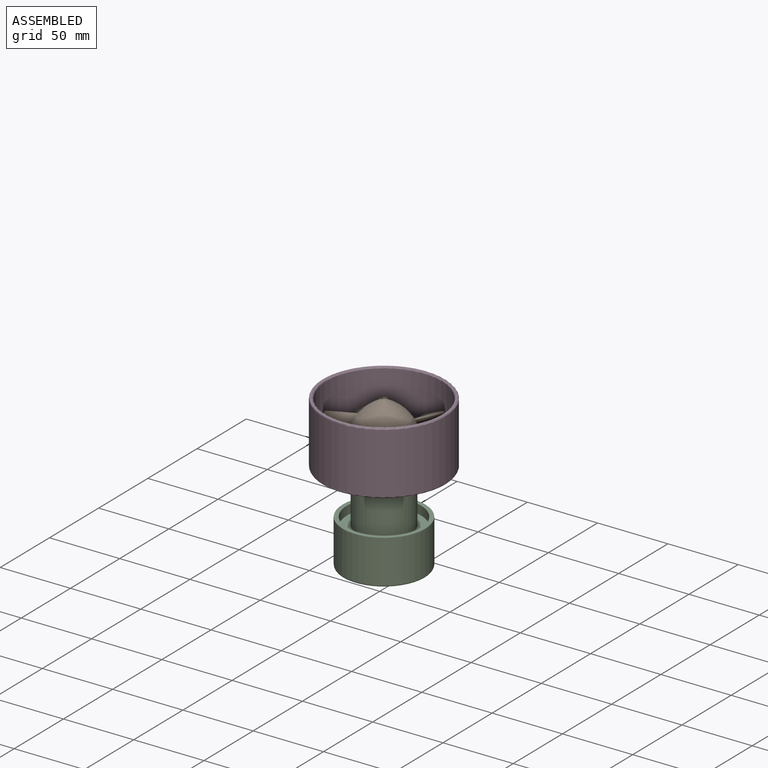
[diagram: assembled view]
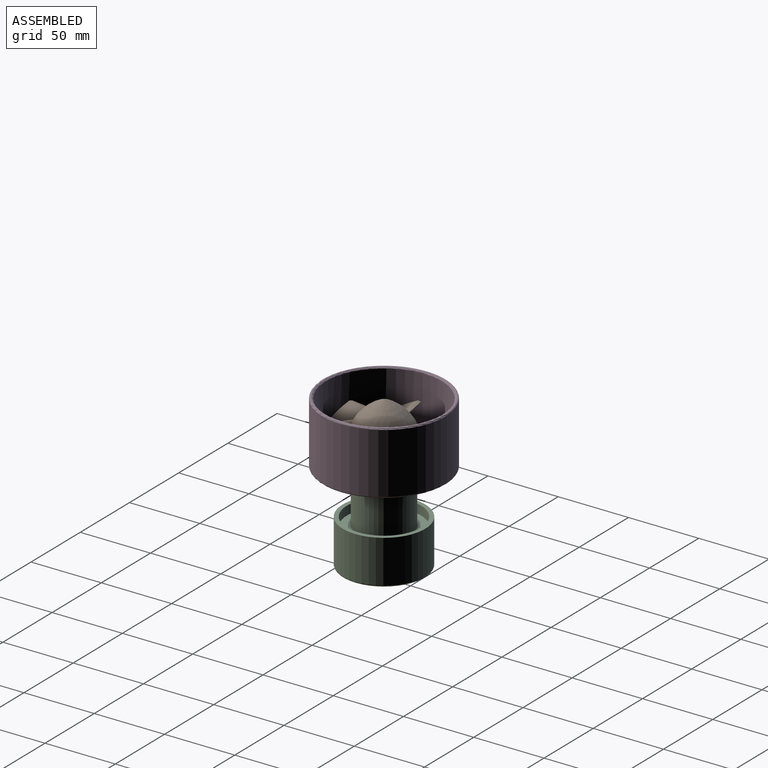
[diagram: assembled view, second angle]
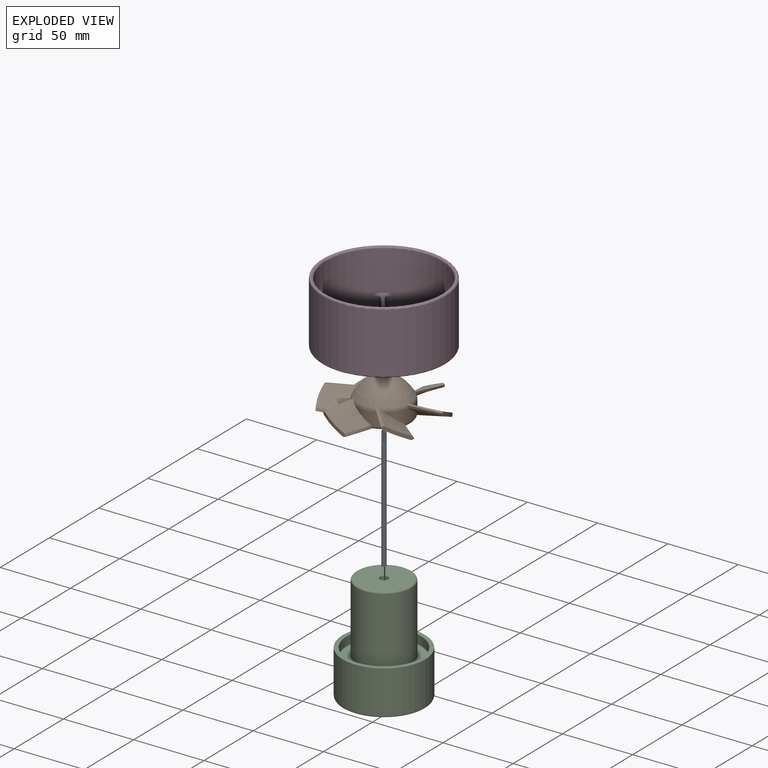
[diagram: exploded view]
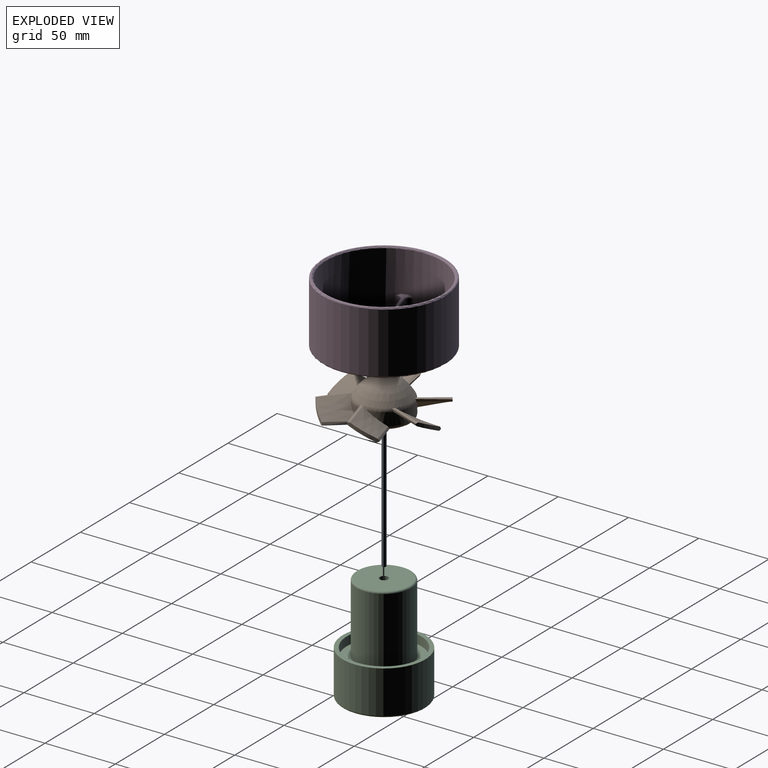
[diagram: exploded view, second angle]
ASSEMBLY  parts=4 mates=3
PART A: 6 faces, bbox 3x3x88.9 mm
  f0: plane 10.41x2.58mm, normal (0,1,0), area 24.5mm2, adj f1,f2,f4,f5
  f1: cylinder r=1.52mm len=86.36mm, axis (0,0,-1), area 802.7mm2, adj f0,f3,f4,f5
  f2: plane 1.69x1.66mm, normal (0,0,1), area 2.2mm2, adj f0,f5
  f3: plane 3.05x3.05mm, normal (0,0,-1), area 7.3mm2, adj f1
  f4: plane 2.58x0.71mm, normal (0,0,1), area 1.3mm2, adj f0,f1
  f5: cone r=0.84mm half-angle=15deg, axis (0,0,-1), area 14.6mm2, adj f0,f1,f2
PART B: 60 faces, bbox 79.4x80x29.2 mm
  f0: plane 23.32x3.22mm, normal (0,-1,0), area 71.3mm2, adj f1,f2,f47
  f1: cylinder r=1.78mm len=19.69mm, axis (0,0,-1), area 141mm2, adj f0,f2,f47
  f2: plane 33.78x33.78mm, normal (0,0,-1), area 888.7mm2, adj f0,f1,f12
  f3: cylinder r=19.43mm len=25.97mm, axis (0,0,-1), area 141.3mm2, adj f12,f17,f25,f52
  f4: cylinder r=19.43mm len=22.62mm, axis (0,0,-1), area 141.3mm2, adj f12,f23,f31,f51
  f5: cylinder r=19.43mm len=22.37mm, axis (0,0,-1), area 141.3mm2, adj f12,f29,f37,f50
  f6: cylinder r=19.43mm len=25.97mm, axis (0,0,-1), area 141.3mm2, adj f12,f35,f43,f49
  f7: cylinder r=19.43mm len=22.62mm, axis (0,0,-1), area 141.3mm2, adj f12,f13,f41,f48
  f8: bspline ~29.84x4.51mm, area 42.8mm2, adj f10,f13,f46,f48,f59
  f9: bspline ~29.84x17.7mm, area 394.6mm2, adj f10,f11,f12,f15,f46,f53,f59
  f10: bspline ~29.84x3.52mm, area 42.9mm2, adj f8,f9,f46,f59
  f11: cylinder r=19.43mm len=22.37mm, axis (0,0,-1), area 141.3mm2, adj f9,f12,f19,f53
  f12: torus R=16.89mm, axis (0,0,1), area 417.8mm2, adj f2,f3,f4,f5,f6,f7,f9,f11
  f13: bspline ~29.84x17.27mm, area 395mm2, adj f7,f8,f12,f14,f48,f59
  f14: bspline ~29.84x3.52mm, area 44mm2, adj f12,f13,f15,f59
  f15: bspline ~29.84x4.22mm, area 42.8mm2, adj f9,f12,f14,f59
  f16: bspline ~25.51x16.67mm, area 42.8mm2, adj f18,f19,f46,f53,f58
  f17: bspline ~33.85x29.33mm, area 394.6mm2, adj f3,f12,f18,f21,f46,f52,f58
  f18: bspline ~26.02x17.97mm, area 42.9mm2, adj f16,f17,f46,f58
  f19: bspline ~33.95x28.47mm, area 395mm2, adj f11,f12,f16,f20,f53,f58
  f20: bspline ~27.6x15.23mm, area 44mm2, adj f12,f19,f21,f58
  f21: bspline ~26.79x14.3mm, area 42.8mm2, adj f12,f17,f20,f58
  f22: bspline ~26.85x14.35mm, area 42.8mm2, adj f24,f25,f46,f52,f57
  f23: bspline ~34.16x28.79mm, area 394.6mm2, adj f4,f12,f24,f27,f46,f51,f57
  f24: bspline ~27.6x15.23mm, area 42.9mm2, adj f22,f23,f46,f57
  f25: bspline ~33.67x28.96mm, area 395mm2, adj f3,f12,f22,f26,f52,f57
  f26: bspline ~26.02x17.97mm, area 44mm2, adj f12,f25,f27,f57
  f27: bspline ~25.49x16.56mm, area 42.8mm2, adj f12,f23,f26,f57
  f28: bspline ~29.84x4.51mm, area 42.8mm2, adj f30,f31,f46,f51,f56
  f29: bspline ~29.84x17.7mm, area 394.6mm2, adj f5,f12,f30,f33,f46,f50,f56
  f30: bspline ~29.84x3.52mm, area 42.9mm2, adj f28,f29,f46,f56
  f31: bspline ~29.84x17.27mm, area 395mm2, adj f4,f12,f28,f32,f51,f56
  f32: bspline ~29.84x3.52mm, area 44mm2, adj f12,f31,f33,f56
  f33: bspline ~29.84x4.22mm, area 42.8mm2, adj f12,f29,f32,f56
  f34: bspline ~25.51x16.67mm, area 42.8mm2, adj f36,f37,f46,f50,f55
  f35: bspline ~33.85x29.33mm, area 394.6mm2, adj f6,f12,f36,f39,f46,f49,f55
  f36: bspline ~26.02x17.97mm, area 42.9mm2, adj f34,f35,f46,f55
  f37: bspline ~33.95x28.47mm, area 395mm2, adj f5,f12,f34,f38,f50,f55
  f38: bspline ~27.6x15.23mm, area 44mm2, adj f12,f37,f39,f55
  f39: bspline ~26.79x14.3mm, area 42.8mm2, adj f12,f35,f38,f55
  f40: bspline ~26.85x14.35mm, area 42.8mm2, adj f42,f43,f46,f49,f54
  f41: bspline ~34.16x28.79mm, area 394.6mm2, adj f7,f12,f42,f45,f46,f48,f54
  f42: bspline ~27.6x15.23mm, area 42.9mm2, adj f40,f41,f46,f54
  f43: bspline ~33.67x28.96mm, area 395mm2, adj f6,f12,f40,f44,f49,f54
  f44: bspline ~26.02x17.97mm, area 44mm2, adj f12,f43,f45,f54
  f45: bspline ~25.49x16.56mm, area 42.8mm2, adj f12,f41,f44,f54
  f46: revolved ~37.81x37.81mm, area 1601.6mm2, adj f8,f9,f10,f16,f17,f18,f22,f23
  f47: revolved ~5.08x3.56mm, area 26.6mm2, adj f0,f1
  f48: torus R=14.35mm, axis (0,0,-1), area 45.1mm2, adj f7,f8,f13,f41,f46
  f49: torus R=14.35mm, axis (0,0,-1), area 45.1mm2, adj f6,f35,f40,f43,f46
  f50: torus R=14.35mm, axis (0,0,-1), area 45.1mm2, adj f5,f29,f34,f37,f46
  f51: torus R=14.35mm, axis (0,0,-1), area 45.1mm2, adj f4,f23,f28,f31,f46
  f52: torus R=14.35mm, axis (0,0,-1), area 45.1mm2, adj f3,f17,f22,f25,f46
  f53: torus R=14.35mm, axis (0,0,-1), area 45.1mm2, adj f9,f11,f16,f19,f46
  f54: cylinder r=40mm len=17.22mm, axis (0,0,-1), area 52.3mm2, adj f40,f41,f42,f43,f44,f45
  f55: cylinder r=40mm len=17.22mm, axis (0,0,-1), area 52.3mm2, adj f34,f35,f36,f37,f38,f39
  f56: cylinder r=40mm len=19.88mm, axis (0,0,-1), area 52.3mm2, adj f28,f29,f30,f31,f32,f33
  f57: cylinder r=40mm len=17.22mm, axis (0,0,-1), area 52.3mm2, adj f22,f23,f24,f25,f26,f27
  f58: cylinder r=40mm len=17.22mm, axis (0,0,-1), area 52.3mm2, adj f16,f17,f18,f19,f20,f21
  f59: cylinder r=40mm len=19.88mm, axis (0,0,-1), area 52.3mm2, adj f8,f9,f10,f13,f14,f15
PART C: 11 faces, bbox 63.5x63.5x76.2 mm
  f0: cylinder r=29.34mm len=58.67mm, axis (0,0,-1), area 5618.4mm2, adj f7,f9
  f1: plane 52.83x52.83mm, normal (0,0,1), area 845.9mm2, adj f6,f10
  f2: plane 56.13x56.13mm, normal (0,0,-1), area 2446.8mm2, adj f3,f9
  f3: cylinder r=2.98mm len=76.2mm, axis (0,0,-1), area 1428.9mm2, adj f2,f5
  f4: cylinder r=19.43mm len=48.26mm, axis (0,0,-1), area 5892mm2, adj f8,f10
  f5: plane 36.32x36.32mm, normal (0,0,1), area 1008.2mm2, adj f3,f8
  f6: cylinder r=26.42mm len=52.83mm, axis (0,0,-1), area 1054mm2, adj f1,f7
  f7: plane 58.67x58.67mm, normal (0,0,1), area 511.6mm2, adj f0,f6
  f8: torus R=18.16mm, axis (0,0,1), area 237.8mm2, adj f4,f5
  f9: torus R=28.07mm, axis (0,0,1), area 361.9mm2, adj f0,f2
  f10: torus R=20.7mm, axis (0,0,1), area 249.3mm2, adj f1,f4
PART D: 168 faces, bbox 115.5x109.8x58 mm
  f0: cone r=41.23mm half-angle=62.7deg, axis (0,0,1), area 25.5mm2, adj f112,f133,f134,f143,f144,f157,f158,f160
  f1: cone r=41.23mm half-angle=62.7deg, axis (0,0,1), area 25.5mm2, adj f125,f126,f136,f145,f146,f159,f160,f162
  f2: cone r=41.23mm half-angle=62.7deg, axis (0,0,1), area 25.5mm2, adj f103,f127,f128,f137,f138,f148,f149,f160
  f3: cone r=41.23mm half-angle=62.7deg, axis (0,0,1), area 25.5mm2, adj f106,f129,f130,f139,f140,f151,f152,f160
  f4: plane 20.56x9.29mm, normal (0.81,-0.59,0), area 202.1mm2, adj f45,f46,f95,f159
  f5: plane 20.56x9.29mm, normal (-0.81,0.59,0), area 202.1mm2, adj f43,f44,f83,f136
  f6: plane 43.3x43.3mm, normal (0,0,-1), area 161.4mm2, adj f160,f163
  f7: plane 20.56x9.29mm, normal (0.81,0.59,0), area 202.1mm2, adj f39,f40,f75,f137
  f8: plane 20.56x9.29mm, normal (-0.81,-0.59,0), area 202.1mm2, adj f41,f42,f63,f138
  f9: plane 20.56x10.92mm, normal (-0.31,0.95,0), area 202.1mm2, adj f37,f38,f55,f139
  f10: plane 20.56x10.92mm, normal (0.31,-0.95,0), area 202.1mm2, adj f35,f36,f50,f140
  f11: plane 20.56x11.48mm, normal (-1,0,0), area 202.1mm2, adj f31,f34,f58,f141
  f12: plane 20.56x11.48mm, normal (1,0,0), area 202.1mm2, adj f32,f33,f70,f142
  f13: plane 20.56x10.92mm, normal (-0.31,-0.95,0), area 202.1mm2, adj f29,f30,f78,f143
  f14: plane 20.56x10.92mm, normal (0.31,0.95,0), area 202.1mm2, adj f27,f28,f90,f144
  f15: cylinder r=21.93mm len=22.87mm, axis (0,0,-1), area 425.8mm2, adj f39,f43,f79,f147
  f16: cylinder r=21.93mm len=22.87mm, axis (0,0,-1), area 425.8mm2, adj f38,f42,f59,f150
  f17: cylinder r=21.93mm len=22.87mm, axis (0,0,-1), area 425.8mm2, adj f31,f35,f54,f153
  f18: cylinder r=21.93mm len=22.87mm, axis (0,0,-1), area 425.8mm2, adj f30,f32,f74,f156
  f19: cylinder r=21.93mm len=22.87mm, axis (0,0,-1), area 425.8mm2, adj f27,f46,f94,f161
  f20: cylinder r=41.25mm len=82.5mm, axis (0,0,-1), area 10341.6mm2, adj f28,f29,f33,f34,f36,f37,f40,f41
  f21: cylinder r=43.75mm len=87.5mm, axis (0,0,-1), area 11820.2mm2, adj f165,f167
  f22: plane 85.5x85.5mm, normal (0,0,1), area 133.5mm2, adj f166,f167
  f23: plane 85.5x85.5mm, normal (0,0,-1), area 164.5mm2, adj f97,f98,f99,f100,f101,f102,f103,f104
  f24: plane 77.45x73.69mm, normal (0,0,1), area 164.9mm2, adj f48,f49,f50,f52,f53,f54,f55,f56
  f25: cylinder r=19.43mm len=38.86mm, axis (0,0,-1), area 2747mm2, adj f163,f164
  f26: cone r=41.23mm half-angle=62.7deg, axis (0,0,1), area 25.5mm2, adj f109,f131,f132,f141,f142,f154,f155,f160
  f27: cylinder r=4mm len=22.87mm, axis (0,0,-1), area 118.8mm2, adj f14,f19,f92,f158
  f28: cylinder r=4mm len=14.63mm, axis (0,0,-1), area 89.6mm2, adj f14,f20,f88,f113,f123,f134
  f29: cylinder r=4mm len=14.63mm, axis (0,0,-1), area 89.6mm2, adj f13,f20,f80,f111,f122,f133
  f30: cylinder r=4mm len=22.87mm, axis (0,0,-1), area 118.8mm2, adj f13,f18,f76,f157
  f31: cylinder r=4mm len=22.87mm, axis (0,0,-1), area 118.8mm2, adj f11,f17,f56,f154
  f32: cylinder r=4mm len=22.87mm, axis (0,0,-1), area 118.8mm2, adj f12,f18,f72,f155
  f33: cylinder r=4mm len=14.63mm, axis (0,0,-1), area 89.6mm2, adj f12,f20,f68,f110,f121,f132
  f34: cylinder r=4mm len=14.63mm, axis (0,0,-1), area 89.6mm2, adj f11,f20,f60,f108,f120,f131
  f35: cylinder r=4mm len=22.87mm, axis (0,0,-1), area 118.8mm2, adj f10,f17,f52,f152
  f36: cylinder r=4mm len=14.63mm, axis (0,0,-1), area 89.6mm2, adj f10,f20,f48,f107,f119,f130
  f37: cylinder r=4mm len=14.63mm, axis (0,0,-1), area 89.6mm2, adj f9,f20,f53,f105,f118,f129
  f38: cylinder r=4mm len=22.87mm, axis (0,0,-1), area 118.8mm2, adj f9,f16,f57,f151
  f39: cylinder r=4mm len=22.87mm, axis (0,0,-1), area 118.8mm2, adj f7,f15,f77,f148
  f40: cylinder r=4mm len=14.63mm, axis (0,0,-1), area 89.6mm2, adj f7,f20,f73,f102,f116,f127
  f41: cylinder r=4mm len=14.63mm, axis (0,0,-1), area 89.6mm2, adj f8,f20,f65,f104,f117,f128
  f42: cylinder r=4mm len=22.87mm, axis (0,0,-1), area 118.8mm2, adj f8,f16,f61,f149
  f43: cylinder r=4mm len=22.87mm, axis (0,0,-1), area 118.8mm2, adj f5,f15,f81,f146
  f44: cylinder r=4mm len=14.63mm, axis (0,0,-1), area 89.6mm2, adj f5,f20,f85,f101,f115,f126
  f45: cylinder r=4mm len=14.63mm, axis (0,0,-1), area 89.6mm2, adj f4,f20,f93,f124,f135,f145
  f46: cylinder r=4mm len=22.87mm, axis (0,0,-1), area 118.8mm2, adj f4,f19,f96,f162
  f47: bspline ~4.75x2mm, area 2.4mm2, adj f20,f48,f49
  f48: torus R=5mm, axis (0,0,1), area 8.2mm2, adj f24,f36,f47,f50
  f49: torus R=40.25mm, axis (0,0,1), area 4.9mm2, adj f20,f24,f47,f51
  f50: cylinder r=1mm len=11.23mm, axis (-0.95,-0.31,0), area 18mm2, adj f10,f24,f48,f52
  f51: bspline ~4.82x2.19mm, area 2.3mm2, adj f20,f49,f53
  f52: torus R=5mm, axis (0,0,1), area 9.4mm2, adj f24,f35,f50,f54
  f53: torus R=5mm, axis (0,0,1), area 8.2mm2, adj f24,f37,f51,f55
  f54: torus R=20.93mm, axis (0,0,1), area 28.8mm2, adj f17,f24,f52,f56
  f55: cylinder r=1mm len=11.23mm, axis (0.95,0.31,0), area 18mm2, adj f9,f24,f53,f57
  f56: torus R=5mm, axis (0,0,1), area 9.4mm2, adj f24,f31,f54,f58
  f57: torus R=5mm, axis (0,0,1), area 9.4mm2, adj f24,f38,f55,f59
  f58: cylinder r=1mm len=11.48mm, axis (0,1,0), area 18mm2, adj f11,f24,f56,f60
  f59: torus R=20.93mm, axis (0,0,1), area 28.8mm2, adj f16,f24,f57,f61
  f60: torus R=5mm, axis (0,0,1), area 8.2mm2, adj f24,f34,f58,f62
  f61: torus R=5mm, axis (0,0,1), area 9.4mm2, adj f24,f42,f59,f63
  f62: bspline ~4.93x2mm, area 2.4mm2, adj f20,f60,f64
  f63: cylinder r=1mm len=9.88mm, axis (-0.59,0.81,0), area 18mm2, adj f8,f24,f61,f65
  f64: torus R=40.25mm, axis (0,0,1), area 4.9mm2, adj f20,f24,f62,f66
  f65: torus R=5mm, axis (0,0,1), area 8.2mm2, adj f24,f41,f63,f67
  f66: bspline ~4.93x2mm, area 2.4mm2, adj f20,f64,f68
  f67: bspline ~4.29x3.23mm, area 2.4mm2, adj f20,f65,f69
  f68: torus R=5mm, axis (0,0,1), area 8.2mm2, adj f24,f33,f66,f70
  f69: torus R=40.25mm, axis (0,0,1), area 4.9mm2, adj f20,f24,f67,f71
  f70: cylinder r=1mm len=11.48mm, axis (0,-1,0), area 18mm2, adj f12,f24,f68,f72
  f71: bspline ~4.23x3.4mm, area 2.3mm2, adj f20,f69,f73
  f72: torus R=5mm, axis (0,0,1), area 9.4mm2, adj f24,f32,f70,f74
  f73: torus R=5mm, axis (0,0,1), area 8.2mm2, adj f24,f40,f71,f75
  f74: torus R=20.93mm, axis (0,0,1), area 28.8mm2, adj f18,f24,f72,f76
  f75: cylinder r=1mm len=9.88mm, axis (0.59,-0.81,0), area 18mm2, adj f7,f24,f73,f77
  f76: torus R=5mm, axis (0,0,1), area 9.4mm2, adj f24,f30,f74,f78
  f77: torus R=5mm, axis (0,0,1), area 9.4mm2, adj f24,f39,f75,f79
  f78: cylinder r=1mm len=11.23mm, axis (-0.95,0.31,0), area 18mm2, adj f13,f24,f76,f80
  f79: torus R=20.93mm, axis (0,0,1), area 28.8mm2, adj f15,f24,f77,f81
  f80: torus R=5mm, axis (0,0,1), area 8.2mm2, adj f24,f29,f78,f82
  f81: torus R=5mm, axis (0,0,1), area 9.4mm2, adj f24,f43,f79,f83
  f82: bspline ~4.75x2mm, area 2.4mm2, adj f20,f80,f84
  f83: cylinder r=1mm len=9.88mm, axis (0.59,0.81,0), area 18mm2, adj f5,f24,f81,f85
  f84: torus R=40.25mm, axis (0,0,1), area 4.9mm2, adj f20,f24,f82,f86
  f85: torus R=5mm, axis (0,0,1), area 8.2mm2, adj f24,f44,f83,f87
  f86: bspline ~4.82x2.19mm, area 2.4mm2, adj f20,f84,f88
  f87: bspline ~3.66x3.02mm, area 2.3mm2, adj f20,f85,f89
  f88: torus R=5mm, axis (0,0,1), area 8.2mm2, adj f24,f28,f86,f90
  f89: torus R=40.25mm, axis (0,0,1), area 4.9mm2, adj f20,f24,f87,f91
  f90: cylinder r=1mm len=11.23mm, axis (0.95,-0.31,0), area 18mm2, adj f14,f24,f88,f92
  f91: bspline ~4.29x3.23mm, area 2.4mm2, adj f20,f89,f93
  f92: torus R=5mm, axis (0,0,1), area 9.4mm2, adj f24,f27,f90,f94
  f93: torus R=5mm, axis (0,0,1), area 8.2mm2, adj f24,f45,f91,f95
  f94: torus R=20.93mm, axis (0,0,1), area 28.8mm2, adj f19,f24,f92,f96
  f95: cylinder r=1mm len=9.88mm, axis (-0.59,-0.81,0), area 18mm2, adj f4,f24,f93,f96
  f96: torus R=5mm, axis (0,0,1), area 9.4mm2, adj f24,f46,f94,f95
  f97: torus R=42.25mm, axis (0,0,1), area 63.7mm2, adj f20,f23,f101,f102
  f98: torus R=42.25mm, axis (0,0,1), area 63.7mm2, adj f20,f23,f104,f105
  f99: torus R=42.25mm, axis (0,0,1), area 63.7mm2, adj f20,f23,f107,f108
  f100: torus R=42.25mm, axis (0,0,1), area 63.7mm2, adj f20,f23,f110,f111
  f101: torus R=5mm, axis (0,0,1), area 4.1mm2, adj f23,f44,f97,f115
  f102: torus R=5mm, axis (0,0,1), area 4.1mm2, adj f23,f40,f97,f116
  f103: torus R=41.47mm, axis (0,0,1), area 2.3mm2, adj f2,f23,f116,f117
  f104: torus R=5mm, axis (0,0,1), area 4.1mm2, adj f23,f41,f98,f117
  f105: torus R=5mm, axis (0,0,1), area 4.1mm2, adj f23,f37,f98,f118
  f106: torus R=41.47mm, axis (0,0,1), area 2.3mm2, adj f3,f23,f118,f119
  f107: torus R=5mm, axis (0,0,1), area 4.1mm2, adj f23,f36,f99,f119
  f108: torus R=5mm, axis (0,0,1), area 4.1mm2, adj f23,f34,f99,f120
  f109: torus R=41.47mm, axis (0,0,1), area 2.3mm2, adj f23,f26,f120,f121
  f110: torus R=5mm, axis (0,0,1), area 4.1mm2, adj f23,f33,f100,f121
  f111: torus R=5mm, axis (0,0,1), area 4.1mm2, adj f23,f29,f100,f122
  f112: torus R=41.47mm, axis (0,0,1), area 2.3mm2, adj f0,f23,f122,f123
  f113: torus R=5mm, axis (0,0,1), area 4.1mm2, adj f23,f28,f114,f123
  f114: torus R=42.25mm, axis (0,0,1), area 63.7mm2, adj f20,f23,f113,f124
  f115: bspline ~2.5x2.19mm, area 1.9mm2, adj f44,f101,f125,f126
  f116: bspline ~2.23x1.96mm, area 1.9mm2, adj f40,f102,f103,f127
  f117: bspline ~2.45x1.66mm, area 1.9mm2, adj f41,f103,f104,f128
  f118: bspline ~2.22x2.17mm, area 1.9mm2, adj f37,f105,f106,f129
  f119: bspline ~2.46x1.66mm, area 1.9mm2, adj f36,f106,f107,f130
  f120: bspline ~2.27x1.9mm, area 1.9mm2, adj f34,f108,f109,f131
  f121: bspline ~2.63x1.88mm, area 1.9mm2, adj f33,f109,f110,f132
  f122: bspline ~2.09x1.73mm, area 1.9mm2, adj f29,f111,f112,f133
  f123: bspline ~2.54x2.3mm, area 1.9mm2, adj f28,f112,f113,f134
  f124: torus R=5mm, axis (0,0,1), area 4.1mm2, adj f23,f45,f114,f135
  f125: torus R=41.47mm, axis (0,0,1), area 2.3mm2, adj f1,f23,f115,f135
  f126: bspline ~4.94x3.21mm, area 7mm2, adj f1,f44,f115,f136
  f127: bspline ~4.94x3.21mm, area 7mm2, adj f2,f40,f116,f137
  f128: bspline ~4.82x3.47mm, area 7mm2, adj f2,f41,f117,f138
  f129: bspline ~5.38x3.47mm, area 7mm2, adj f3,f37,f118,f139
  f130: bspline ~4.57x4.2mm, area 7mm2, adj f3,f36,f119,f140
  f131: bspline ~5.23x3.47mm, area 7mm2, adj f26,f34,f120,f141
  f132: bspline ~5.23x3.47mm, area 7mm2, adj f26,f33,f121,f142
  f133: bspline ~4.57x4.2mm, area 7mm2, adj f0,f29,f122,f143
  f134: bspline ~5.01x3.21mm, area 7mm2, adj f0,f28,f123,f144
  f135: bspline ~2.07x1.73mm, area 1.9mm2, adj f45,f124,f125,f145
  f136: bspline ~36.32x27.04mm, area 20.3mm2, adj f1,f5,f126,f146
  f137: bspline ~30.83x23.05mm, area 20.3mm2, adj f2,f7,f127,f148
  f138: bspline ~36.69x26.76mm, area 20.3mm2, adj f2,f8,f128,f149
  f139: bspline ~35.99x20.22mm, area 20.3mm2, adj f3,f9,f129,f151
  f140: bspline ~42.75x23.73mm, area 20.3mm2, adj f3,f10,f130,f152
  f141: bspline ~37.84x20.22mm, area 20.3mm2, adj f11,f26,f131,f154
  f142: bspline ~44.63x23.73mm, area 20.3mm2, adj f12,f26,f132,f155
  f143: bspline ~36.3x20.22mm, area 20.3mm2, adj f0,f13,f133,f157
  f144: bspline ~42.44x23.73mm, area 20.3mm2, adj f0,f14,f134,f158
  f145: bspline ~4.82x3.47mm, area 7mm2, adj f1,f45,f135,f159
  f146: bspline ~7.67x3.84mm, area 7.9mm2, adj f1,f43,f136,f147,f160
  f147: torus R=20.93mm, axis (0,0,1), area 12.5mm2, adj f15,f146,f148,f160
  f148: bspline ~7.67x3.84mm, area 7.9mm2, adj f2,f39,f137,f147,f160
  f149: bspline ~7.96x3.84mm, area 7.9mm2, adj f2,f42,f138,f150,f160
  f150: torus R=20.93mm, axis (0,0,1), area 12.5mm2, adj f16,f149,f151,f160
  f151: bspline ~6.63x4.79mm, area 7.9mm2, adj f3,f38,f139,f150,f160
  f152: bspline ~7.47x3.84mm, area 7.9mm2, adj f3,f35,f140,f153,f160
  f153: torus R=20.93mm, axis (0,0,1), area 12.5mm2, adj f17,f152,f154,f160
  f154: bspline ~6.25x5.09mm, area 7.9mm2, adj f26,f31,f141,f153,f160
  f155: bspline ~6.25x5.09mm, area 7.9mm2, adj f26,f32,f142,f156,f160
  f156: torus R=20.93mm, axis (0,0,1), area 12.5mm2, adj f18,f155,f157,f160
  f157: bspline ~7.47x3.84mm, area 7.9mm2, adj f0,f30,f143,f156,f160
  f158: bspline ~6.63x4.79mm, area 7.9mm2, adj f0,f27,f144,f160,f161
  f159: bspline ~31.2x22.78mm, area 20.3mm2, adj f1,f4,f145,f162
  f160: torus R=21.65mm, axis (0,0,1), area 20.1mm2, adj f0,f1,f2,f3,f6,f26,f146,f147
  f161: torus R=20.93mm, axis (0,0,1), area 12.5mm2, adj f19,f158,f160,f162
  f162: bspline ~7.96x3.84mm, area 7.9mm2, adj f1,f46,f159,f160,f161
  f163: torus R=20.43mm, axis (0,0,1), area 195.4mm2, adj f6,f25
  f164: torus R=20.43mm, axis (0,0,1), area 195.4mm2, adj f24,f25
  f165: torus R=42.75mm, axis (0,0,1), area 428.2mm2, adj f21,f23
  f166: torus R=42.25mm, axis (0,0,1), area 410.7mm2, adj f20,f22
  f167: torus R=42.75mm, axis (0,0,1), area 428.2mm2, adj f21,f22
PLACE A rot(axis=(0,0,-1),180deg) t=(-111.57,-21.93,7.59)mm
PLACE B rot(axis=(0,0,1),106.8deg) t=(-111.57,-21.93,94.52)mm
PLACE C t=(-111.57,-21.93,7.59)mm fixed
PLACE D t=(-111.57,-21.93,10.15)mm
MATE revolute B.f1 <-> A.f1  axis (0,0,-1) through (-111.57,-21.93,107.95)mm
MATE slider C.f4 <-> D.f25  axis (0,0,1) through (-111.57,-21.93,82.52)mm
MATE revolute A.f1 <-> C.f0  axis (0,0,-1) through (-111.57,-21.93,7.59)mm
